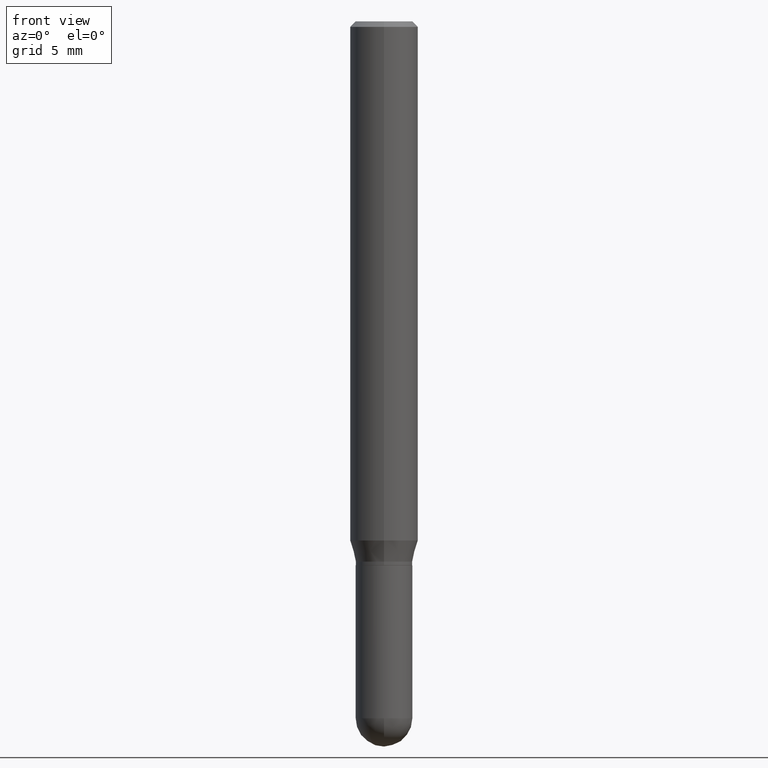
[diagram: clean part render]
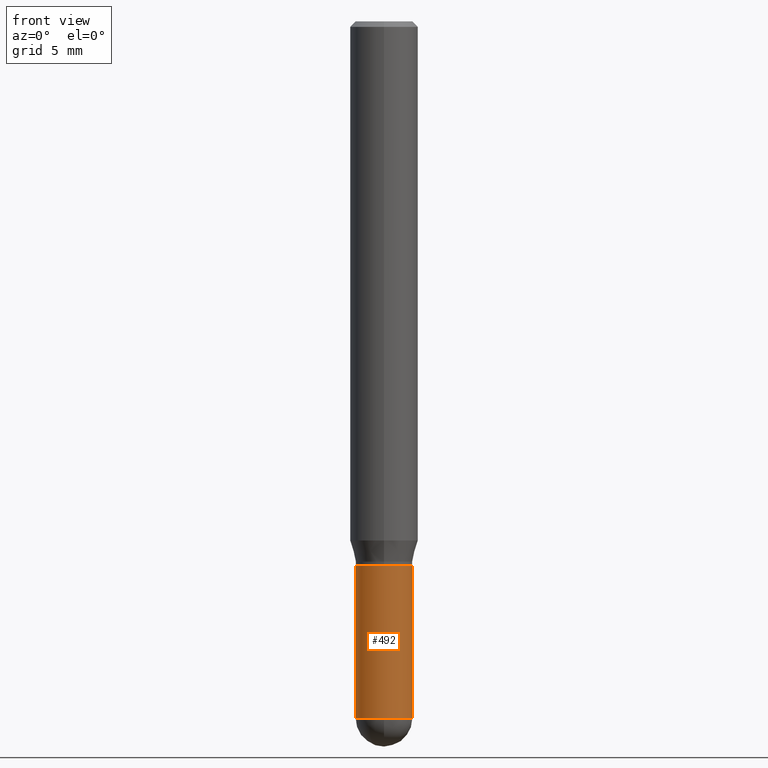
[diagram: same view with one face highlighted and labeled with its STEP entity id]
A machine part, front view. The second image highlights one B-rep face of the part: STEP entity #492.
In plain terms, the highlighted cylindrical surface (edge-blend (fillet) strip) has radius 1.9837 mm, axis along (-0, 0, 1).
Its self-contained STEP definition (entity closure, byte-faithful):
#6 = DIRECTION ( 'NONE',  ( 1.000000000000000000, -6.982962677686266711E-15, 0.000000000000000000 ) ) ;
#9 = FACE_OUTER_BOUND ( 'NONE', #302, .T. ) ;
#17 = CARTESIAN_POINT ( 'NONE',  ( 0.07810000000000000275, -6.519119381820976762E-15, -1.921900000000000164 ) ) ;
#52 = DIRECTION ( 'NONE',  ( 1.000000000000000000, -6.982962677686266711E-15, 0.000000000000000000 ) ) ;
#54 = ORIENTED_EDGE ( 'NONE', *, *, #397, .F. ) ;
#59 = ORIENTED_EDGE ( 'NONE', *, *, #197, .T. ) ;
#71 = CIRCLE ( 'NONE', #366, 0.07810000000000000275 ) ;
#74 = EDGE_CURVE ( 'NONE', #101, #299, #316, .T. ) ;
#94 = DIRECTION ( 'NONE',  ( -2.445468806185136597E-29, 3.491481338843145583E-15, 1.000000000000000000 ) ) ;
#101 = VERTEX_POINT ( 'NONE', #335 ) ;
#117 = CARTESIAN_POINT ( 'NONE',  ( -0.07810000000000000275, 5.549338766286382647E-16, -3.841688305489081275E-30 ) ) ;
#137 = CARTESIAN_POINT ( 'NONE',  ( 4.699946498607214373E-29, -6.710277985122641264E-15, -1.921900000000000164 ) ) ;
#139 = CARTESIAN_POINT ( 'NONE',  ( 4.699946498607214373E-29, -6.710277985122641264E-15, -1.921900000000000164 ) ) ;
#158 = DIRECTION ( 'NONE',  ( 1.000000000000000000, -6.982962677686266711E-15, 4.876176775795935232E-29 ) ) ;
#160 = CARTESIAN_POINT ( 'NONE',  ( 0.000000000000000000, 0.000000000000000000, 0.000000000000000000 ) ) ;
#166 = LINE ( 'NONE', #338, #232 ) ;
#197 = EDGE_CURVE ( 'NONE', #280, #485, #71, .T. ) ;
#199 = CIRCLE ( 'NONE', #488, 0.07810000000000000275 ) ;
#203 = EDGE_CURVE ( 'NONE', #101, #280, #199, .T. ) ;
#226 = DIRECTION ( 'NONE',  ( 1.000000000000000000, -6.982962677686266711E-15, 0.000000000000000000 ) ) ;
#232 = VECTOR ( 'NONE', #484, 39.37007874015748143 ) ;
#235 = ORIENTED_EDGE ( 'NONE', *, *, #423, .T. ) ;
#237 = CARTESIAN_POINT ( 'NONE',  ( -0.07810000000000000275, -5.418816120065042244E-15, -1.500000000000000222 ) ) ;
#243 = DIRECTION ( 'NONE',  ( -2.445468806185136877E-29, 3.491481338843145188E-15, 1.000000000000000000 ) ) ;
#262 = CYLINDRICAL_SURFACE ( 'NONE', #446, 0.07810000000000000275 ) ;
#272 = CARTESIAN_POINT ( 'NONE',  ( -5.549338766285910317E-16, -0.07810000000000670572, -1.921899999999999720 ) ) ;
#280 = VERTEX_POINT ( 'NONE', #272 ) ;
#281 = ORIENTED_EDGE ( 'NONE', *, *, #203, .T. ) ;
#290 = VECTOR ( 'NONE', #243, 39.37007874015748143 ) ;
#299 = VERTEX_POINT ( 'NONE', #237 ) ;
#302 = EDGE_LOOP ( 'NONE', ( #395, #281, #59, #235, #54 ) ) ;
#316 = LINE ( 'NONE', #117, #290 ) ;
#335 = CARTESIAN_POINT ( 'NONE',  ( -0.07810000000000000275, -5.418816120065042244E-15, -1.921900000000000164 ) ) ;
#338 = CARTESIAN_POINT ( 'NONE',  ( 0.07810000000000000275, -5.453693851272974364E-16, 3.808294061896625703E-30 ) ) ;
#353 = VERTEX_POINT ( 'NONE', #437 ) ;
#366 = AXIS2_PLACEMENT_3D ( 'NONE', #139, #94, #52 ) ;
#368 = CARTESIAN_POINT ( 'NONE',  ( 3.668203209277704895E-29, -5.237222008264718177E-15, -1.500000000000000222 ) ) ;
#395 = ORIENTED_EDGE ( 'NONE', *, *, #74, .F. ) ;
#397 = EDGE_CURVE ( 'NONE', #299, #353, #440, .T. ) ;
#414 = DIRECTION ( 'NONE',  ( -2.445468806185136597E-29, 3.491481338843145583E-15, 1.000000000000000000 ) ) ;
#422 = DIRECTION ( 'NONE',  ( -2.445468806185136597E-29, 3.491481338843145583E-15, 1.000000000000000000 ) ) ;
#423 = EDGE_CURVE ( 'NONE', #485, #353, #166, .T. ) ;
#437 = CARTESIAN_POINT ( 'NONE',  ( 0.07810000000000000275, -5.782591393392015613E-15, -1.500000000000000222 ) ) ;
#440 = CIRCLE ( 'NONE', #509, 0.07810000000000000275 ) ;
#446 = AXIS2_PLACEMENT_3D ( 'NONE', #160, #414, #158 ) ;
#476 = DIRECTION ( 'NONE',  ( -2.445468806185136597E-29, 3.491481338843145583E-15, 1.000000000000000000 ) ) ;
#484 = DIRECTION ( 'NONE',  ( -2.445468806185136877E-29, 3.491481338843145188E-15, 1.000000000000000000 ) ) ;
#485 = VERTEX_POINT ( 'NONE', #17 ) ;
#488 = AXIS2_PLACEMENT_3D ( 'NONE', #137, #422, #226 ) ;
#492 = ADVANCED_FACE ( 'NONE', ( #9 ), #262, .T. ) ;
#509 = AXIS2_PLACEMENT_3D ( 'NONE', #368, #476, #6 ) ;